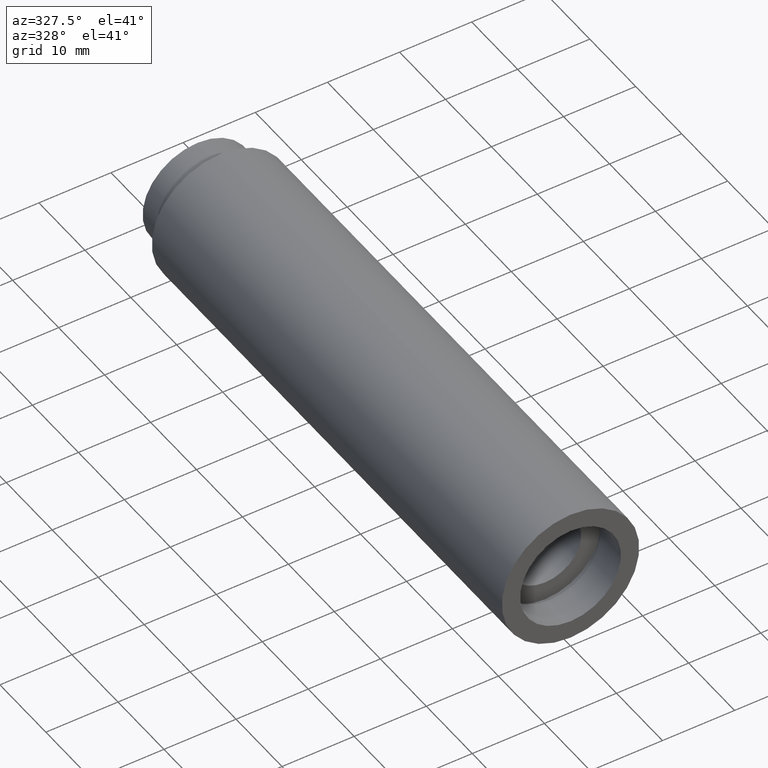
[diagram: clean part render]
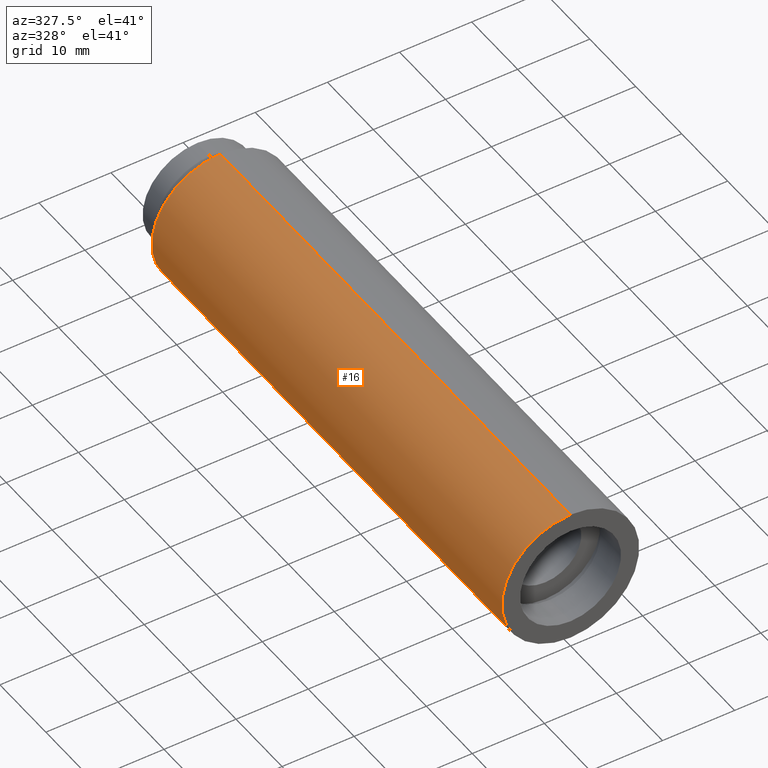
[diagram: same view with one face highlighted and labeled with its STEP entity id]
A machine part, auxiliary view. The second image highlights one B-rep face of the part: STEP entity #16.
In plain terms, the highlighted cylindrical surface (partial cylindrical patch) has radius 9.525 mm, axis along (-0, 1, -0).
Its self-contained STEP definition (entity closure, byte-faithful):
#9 = ORIENTED_EDGE ( 'NONE', *, *, #555, .T. ) ;
#16 = ADVANCED_FACE ( 'NONE', ( #104 ), #370, .T. ) ;
#19 = DIRECTION ( 'NONE',  ( 0.0000000000000000000, 0.0000000000000000000, 1.000000000000000000 ) ) ;
#21 = DIRECTION ( 'NONE',  ( -0.0000000000000000000, 1.000000000000000000, -0.0000000000000000000 ) ) ;
#25 = CARTESIAN_POINT ( 'NONE',  ( 0.0000000000000000000, 161.3761669434274500, 0.0000000000000000000 ) ) ;
#36 = DIRECTION ( 'NONE',  ( 0.0000000000000000000, 0.0000000000000000000, 1.000000000000000000 ) ) ;
#65 = DIRECTION ( 'NONE',  ( -0.0000000000000000000, 1.000000000000000000, -0.0000000000000000000 ) ) ;
#82 = AXIS2_PLACEMENT_3D ( 'NONE', #536, #530, #574 ) ;
#83 = CARTESIAN_POINT ( 'NONE',  ( 1.166476076187856400E-015, 161.3761669434274500, -9.525000000000019900 ) ) ;
#104 = FACE_OUTER_BOUND ( 'NONE', #408, .T. ) ;
#139 = ORIENTED_EDGE ( 'NONE', *, *, #313, .F. ) ;
#144 = CARTESIAN_POINT ( 'NONE',  ( 0.0000000000000000000, 76.19999999999998900, 9.525000000000019900 ) ) ;
#156 = CIRCLE ( 'NONE', #196, 9.525000000000019900 ) ;
#167 = CARTESIAN_POINT ( 'NONE',  ( 0.0000000000000000000, -2.775557561562891400E-014, 0.0000000000000000000 ) ) ;
#184 = EDGE_CURVE ( 'NONE', #261, #565, #262, .T. ) ;
#191 = DIRECTION ( 'NONE',  ( -0.0000000000000000000, 1.000000000000000000, -0.0000000000000000000 ) ) ;
#196 = AXIS2_PLACEMENT_3D ( 'NONE', #167, #65, #19 ) ;
#205 = VERTEX_POINT ( 'NONE', #527 ) ;
#261 = VERTEX_POINT ( 'NONE', #431 ) ;
#262 = LINE ( 'NONE', #83, #415 ) ;
#266 = VERTEX_POINT ( 'NONE', #144 ) ;
#313 = EDGE_CURVE ( 'NONE', #565, #266, #323, .T. ) ;
#323 = CIRCLE ( 'NONE', #82, 9.525000000000019900 ) ;
#337 = DIRECTION ( 'NONE',  ( -0.0000000000000000000, 1.000000000000000000, -0.0000000000000000000 ) ) ;
#354 = AXIS2_PLACEMENT_3D ( 'NONE', #25, #21, #36 ) ;
#370 = CYLINDRICAL_SURFACE ( 'NONE', #354, 9.525000000000019900 ) ;
#386 = CARTESIAN_POINT ( 'NONE',  ( 0.0000000000000000000, 161.3761669434274500, 9.525000000000019900 ) ) ;
#387 = LINE ( 'NONE', #386, #541 ) ;
#408 = EDGE_LOOP ( 'NONE', ( #581, #9, #607, #139 ) ) ;
#415 = VECTOR ( 'NONE', #191, 1000.000000000000000 ) ;
#419 = EDGE_CURVE ( 'NONE', #205, #266, #387, .T. ) ;
#431 = CARTESIAN_POINT ( 'NONE',  ( 1.166476076187856400E-015, -2.775557561562891400E-014, -9.525000000000019900 ) ) ;
#499 = CARTESIAN_POINT ( 'NONE',  ( 1.166476076187856400E-015, 76.19999999999998900, -9.525000000000019900 ) ) ;
#527 = CARTESIAN_POINT ( 'NONE',  ( 0.0000000000000000000, -2.775557561562891400E-014, 9.525000000000019900 ) ) ;
#530 = DIRECTION ( 'NONE',  ( -0.0000000000000000000, 1.000000000000000000, -0.0000000000000000000 ) ) ;
#536 = CARTESIAN_POINT ( 'NONE',  ( 0.0000000000000000000, 76.19999999999998900, 0.0000000000000000000 ) ) ;
#541 = VECTOR ( 'NONE', #337, 1000.000000000000000 ) ;
#555 = EDGE_CURVE ( 'NONE', #261, #205, #156, .T. ) ;
#565 = VERTEX_POINT ( 'NONE', #499 ) ;
#574 = DIRECTION ( 'NONE',  ( 0.0000000000000000000, 0.0000000000000000000, 1.000000000000000000 ) ) ;
#581 = ORIENTED_EDGE ( 'NONE', *, *, #184, .F. ) ;
#607 = ORIENTED_EDGE ( 'NONE', *, *, #419, .T. ) ;